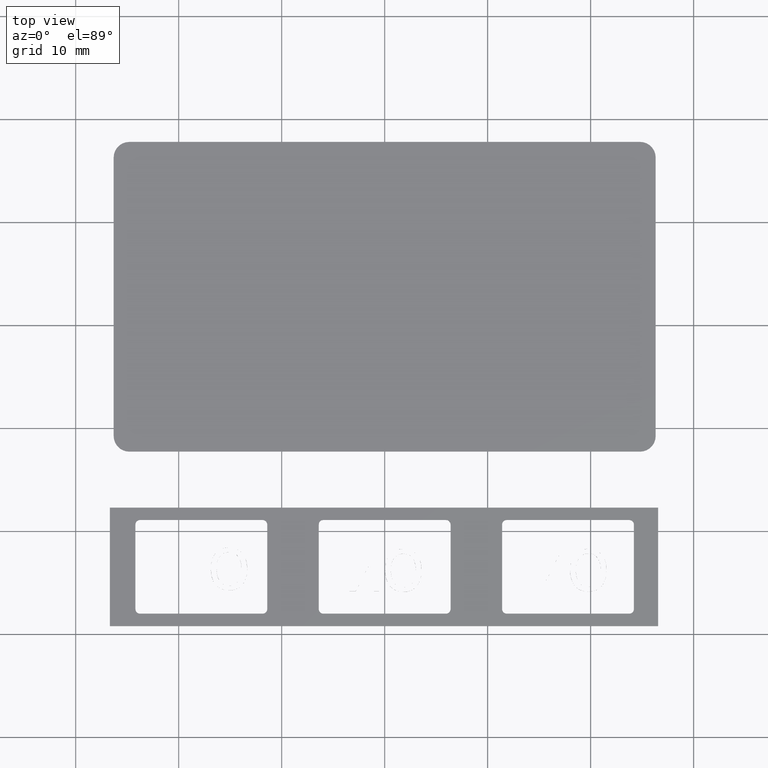
[diagram: clean part render]
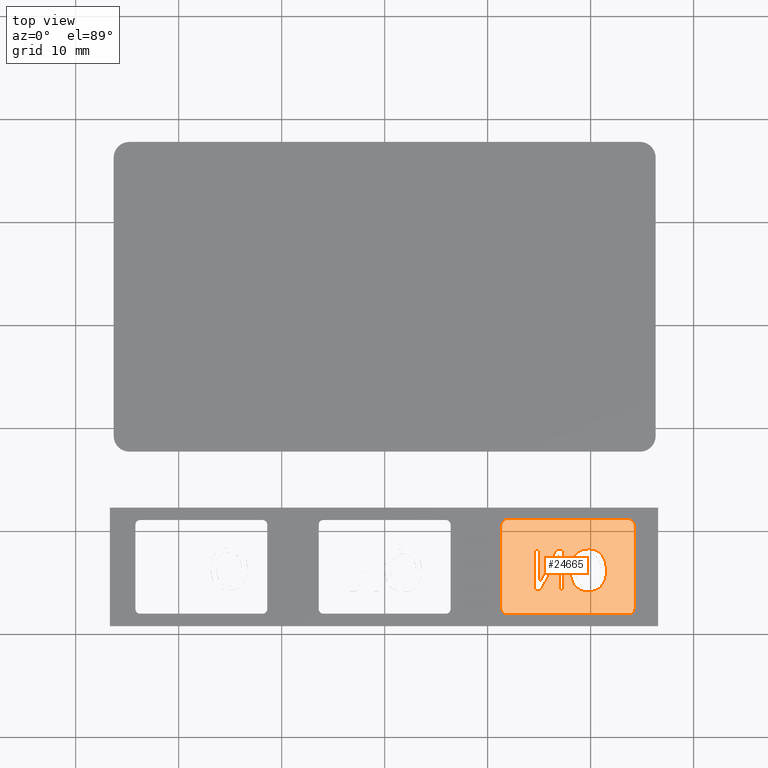
[diagram: same view with one face highlighted and labeled with its STEP entity id]
A machine part, top view. The second image highlights one B-rep face of the part: STEP entity #24665.
In plain terms, the highlighted planar face has unit normal (0, -0, 1).
Its self-contained STEP definition (entity closure, byte-faithful):
#77=FACE_BOUND('',#7277,.T.);
#78=FACE_BOUND('',#7278,.T.);
#341=PLANE('',#27609);
#566=B_SPLINE_CURVE_WITH_KNOTS('',2,(#44213,#44214,#44215,#44216),
 .UNSPECIFIED.,.F.,.F.,(3,1,3),(0.,1.,2.),.UNSPECIFIED.);
#567=B_SPLINE_CURVE_WITH_KNOTS('',2,(#44218,#44219,#44220,#44221),
 .UNSPECIFIED.,.F.,.F.,(3,1,3),(0.,1.,2.),.UNSPECIFIED.);
#568=B_SPLINE_CURVE_WITH_KNOTS('',2,(#44223,#44224,#44225,#44226),
 .UNSPECIFIED.,.F.,.F.,(3,1,3),(0.,1.,2.),.UNSPECIFIED.);
#569=B_SPLINE_CURVE_WITH_KNOTS('',2,(#44228,#44229,#44230,#44231),
 .UNSPECIFIED.,.F.,.F.,(3,1,3),(0.,1.,2.),.UNSPECIFIED.);
#570=B_SPLINE_CURVE_WITH_KNOTS('',2,(#44233,#44234,#44235,#44236),
 .UNSPECIFIED.,.F.,.F.,(3,1,3),(0.,1.,2.),.UNSPECIFIED.);
#571=B_SPLINE_CURVE_WITH_KNOTS('',2,(#44238,#44239,#44240,#44241),
 .UNSPECIFIED.,.F.,.F.,(3,1,3),(0.,1.,2.),.UNSPECIFIED.);
#572=B_SPLINE_CURVE_WITH_KNOTS('',2,(#44243,#44244,#44245,#44246),
 .UNSPECIFIED.,.F.,.F.,(3,1,3),(0.,1.,2.),.UNSPECIFIED.);
#573=B_SPLINE_CURVE_WITH_KNOTS('',2,(#44247,#44248,#44249,#44250),
 .UNSPECIFIED.,.F.,.F.,(3,1,3),(0.,1.,2.),.UNSPECIFIED.);
#1514=LINE('',#40736,#3161);
#1517=LINE('',#40744,#3164);
#1520=LINE('',#40752,#3167);
#1523=LINE('',#40759,#3170);
#2123=LINE('',#44253,#3770);
#2124=LINE('',#44255,#3771);
#2125=LINE('',#44257,#3772);
#2126=LINE('',#44259,#3773);
#2127=LINE('',#44261,#3774);
#2128=LINE('',#44263,#3775);
#2129=LINE('',#44265,#3776);
#2130=LINE('',#44267,#3777);
#2131=LINE('',#44269,#3778);
#2132=LINE('',#44270,#3779);
#3161=VECTOR('',#33555,11.9);
#3164=VECTOR('',#33564,8.2);
#3167=VECTOR('',#33573,11.9);
#3170=VECTOR('',#33582,8.2);
#3770=VECTOR('',#34854,3.87654693840727);
#3771=VECTOR('',#34855,3.44894656679039);
#3772=VECTOR('',#34856,0.495948143532834);
#3773=VECTOR('',#34857,4.00000005960464);
#3774=VECTOR('',#34858,0.755267434268951);
#3775=VECTOR('',#34859,3.55315041912797);
#3776=VECTOR('',#34860,3.16693683811486);
#3777=VECTOR('',#34861,0.495948143532825);
#3778=VECTOR('',#34862,4.00000005960464);
#3779=VECTOR('',#34863,0.596434368693073);
#5943=FACE_OUTER_BOUND('',#7276,.T.);
#7276=EDGE_LOOP('',(#21834,#21835,#21836,#21837,#21838,#21839,#21840,#21841));
#7277=EDGE_LOOP('',(#21842,#21843,#21844,#21845,#21846,#21847,#21848,#21849));
#7278=EDGE_LOOP('',(#21850,#21851,#21852,#21853,#21854,#21855,#21856,#21857,
#21858,#21859));
#9035=CIRCLE('',#27263,0.45);
#9036=CIRCLE('',#27266,0.45);
#9037=CIRCLE('',#27269,0.45);
#9038=CIRCLE('',#27272,0.45);
#10833=VERTEX_POINT('',#40729);
#10834=VERTEX_POINT('',#40730);
#10835=VERTEX_POINT('',#40735);
#10836=VERTEX_POINT('',#40739);
#10837=VERTEX_POINT('',#40743);
#10838=VERTEX_POINT('',#40747);
#10839=VERTEX_POINT('',#40751);
#10840=VERTEX_POINT('',#40755);
#11359=VERTEX_POINT('',#44211);
#11360=VERTEX_POINT('',#44212);
#11361=VERTEX_POINT('',#44217);
#11362=VERTEX_POINT('',#44222);
#11363=VERTEX_POINT('',#44227);
#11364=VERTEX_POINT('',#44232);
#11365=VERTEX_POINT('',#44237);
#11366=VERTEX_POINT('',#44242);
#11367=VERTEX_POINT('',#44251);
#11368=VERTEX_POINT('',#44252);
#11369=VERTEX_POINT('',#44254);
#11370=VERTEX_POINT('',#44256);
#11371=VERTEX_POINT('',#44258);
#11372=VERTEX_POINT('',#44260);
#11373=VERTEX_POINT('',#44262);
#11374=VERTEX_POINT('',#44264);
#11375=VERTEX_POINT('',#44266);
#11376=VERTEX_POINT('',#44268);
#14048=EDGE_CURVE('',#10833,#10834,#9035,.T.);
#14051=EDGE_CURVE('',#10835,#10833,#1514,.T.);
#14053=EDGE_CURVE('',#10836,#10835,#9036,.T.);
#14055=EDGE_CURVE('',#10837,#10836,#1517,.T.);
#14057=EDGE_CURVE('',#10838,#10837,#9037,.T.);
#14059=EDGE_CURVE('',#10839,#10838,#1520,.T.);
#14061=EDGE_CURVE('',#10840,#10839,#9038,.T.);
#14063=EDGE_CURVE('',#10834,#10840,#1523,.T.);
#14869=EDGE_CURVE('',#11359,#11360,#566,.T.);
#14870=EDGE_CURVE('',#11360,#11361,#567,.T.);
#14871=EDGE_CURVE('',#11361,#11362,#568,.T.);
#14872=EDGE_CURVE('',#11362,#11363,#569,.T.);
#14873=EDGE_CURVE('',#11363,#11364,#570,.T.);
#14874=EDGE_CURVE('',#11364,#11365,#571,.T.);
#14875=EDGE_CURVE('',#11365,#11366,#572,.T.);
#14876=EDGE_CURVE('',#11366,#11359,#573,.T.);
#14877=EDGE_CURVE('',#11367,#11368,#2123,.T.);
#14878=EDGE_CURVE('',#11368,#11369,#2124,.T.);
#14879=EDGE_CURVE('',#11369,#11370,#2125,.T.);
#14880=EDGE_CURVE('',#11370,#11371,#2126,.T.);
#14881=EDGE_CURVE('',#11371,#11372,#2127,.T.);
#14882=EDGE_CURVE('',#11372,#11373,#2128,.T.);
#14883=EDGE_CURVE('',#11373,#11374,#2129,.T.);
#14884=EDGE_CURVE('',#11374,#11375,#2130,.T.);
#14885=EDGE_CURVE('',#11375,#11376,#2131,.T.);
#14886=EDGE_CURVE('',#11376,#11367,#2132,.T.);
#21834=ORIENTED_EDGE('',*,*,#14063,.T.);
#21835=ORIENTED_EDGE('',*,*,#14061,.T.);
#21836=ORIENTED_EDGE('',*,*,#14059,.T.);
#21837=ORIENTED_EDGE('',*,*,#14057,.T.);
#21838=ORIENTED_EDGE('',*,*,#14055,.T.);
#21839=ORIENTED_EDGE('',*,*,#14053,.T.);
#21840=ORIENTED_EDGE('',*,*,#14051,.T.);
#21841=ORIENTED_EDGE('',*,*,#14048,.T.);
#21842=ORIENTED_EDGE('',*,*,#14869,.T.);
#21843=ORIENTED_EDGE('',*,*,#14870,.T.);
#21844=ORIENTED_EDGE('',*,*,#14871,.T.);
#21845=ORIENTED_EDGE('',*,*,#14872,.T.);
#21846=ORIENTED_EDGE('',*,*,#14873,.T.);
#21847=ORIENTED_EDGE('',*,*,#14874,.T.);
#21848=ORIENTED_EDGE('',*,*,#14875,.T.);
#21849=ORIENTED_EDGE('',*,*,#14876,.T.);
#21850=ORIENTED_EDGE('',*,*,#14877,.T.);
#21851=ORIENTED_EDGE('',*,*,#14878,.T.);
#21852=ORIENTED_EDGE('',*,*,#14879,.T.);
#21853=ORIENTED_EDGE('',*,*,#14880,.T.);
#21854=ORIENTED_EDGE('',*,*,#14881,.T.);
#21855=ORIENTED_EDGE('',*,*,#14882,.T.);
#21856=ORIENTED_EDGE('',*,*,#14883,.T.);
#21857=ORIENTED_EDGE('',*,*,#14884,.T.);
#21858=ORIENTED_EDGE('',*,*,#14885,.T.);
#21859=ORIENTED_EDGE('',*,*,#14886,.T.);
#24665=ADVANCED_FACE('',(#5943,#77,#78),#341,.F.);
#27263=AXIS2_PLACEMENT_3D('',#40731,#33549,#33550);
#27266=AXIS2_PLACEMENT_3D('',#40740,#33559,#33560);
#27269=AXIS2_PLACEMENT_3D('',#40748,#33568,#33569);
#27272=AXIS2_PLACEMENT_3D('',#40756,#33577,#33578);
#27609=AXIS2_PLACEMENT_3D('',#44210,#34852,#34853);
#33549=DIRECTION('center_axis',(-1.19117678683756E-15,1.03039885219751E-17,
-1.));
#33550=DIRECTION('ref_axis',(-2.75152572753243E-16,1.,-3.41278292167793E-17));
#33555=DIRECTION('',(1.,2.75152572753243E-16,-1.19117678683756E-15));
#33559=DIRECTION('center_axis',(-1.19117678683756E-15,1.03039885219751E-17,
-1.));
#33560=DIRECTION('ref_axis',(-1.,-2.75152572753243E-16,-3.5619655373375E-16));
#33564=DIRECTION('',(-2.75152572753243E-16,1.,1.03039885219755E-17));
#33568=DIRECTION('center_axis',(-1.19117678683756E-15,1.03039885219751E-17,
-1.));
#33569=DIRECTION('ref_axis',(2.75152572753243E-16,-1.,3.41278292167793E-17));
#33573=DIRECTION('',(-1.,-2.75152572753243E-16,1.19117678683756E-15));
#33577=DIRECTION('center_axis',(-1.19117678683756E-15,1.03039885219751E-17,
-1.));
#33578=DIRECTION('ref_axis',(1.,2.75152572753243E-16,3.5619655373375E-16));
#33582=DIRECTION('',(1.35829698702169E-15,-1.,-1.03039885219767E-17));
#34852=DIRECTION('center_axis',(1.19117678683756E-15,-1.03039885219751E-17,
1.));
#34853=DIRECTION('ref_axis',(-1.,-7.105427357601E-16,1.19348975147204E-15));
#34854=DIRECTION('',(0.456554296231785,0.889695551631174,-5.34669466850201E-16));
#34855=DIRECTION('',(7.24558038908854E-16,-1.,-1.0303988521976E-17));
#34856=DIRECTION('',(1.,7.24558038908854E-16,-1.19117678683756E-15));
#34857=DIRECTION('',(-7.24558038908854E-16,1.,1.0303988521976E-17));
#34858=DIRECTION('',(-1.,-7.24558038908854E-16,1.19117678683756E-15));
#34859=DIRECTION('',(-0.45340638691382,-0.891303903450308,5.30903177904889E-16));
#34860=DIRECTION('',(-7.24558038908854E-16,1.,1.0303988521976E-17));
#34861=DIRECTION('',(-1.,-7.24558038908854E-16,1.19117678683756E-15));
#34862=DIRECTION('',(7.24558038908854E-16,-1.,-1.0303988521976E-17));
#34863=DIRECTION('',(1.,7.24558038908854E-16,-1.19117678683756E-15));
#40729=CARTESIAN_POINT('',(23.7500000000005,-88.9000000000002,0.37499999999997));
#40730=CARTESIAN_POINT('',(24.2000000000005,-89.3500000000002,0.37499999999997));
#40731=CARTESIAN_POINT('Origin',(23.7500000000005,-89.3500000000002,0.375000000000014));
#40735=CARTESIAN_POINT('',(11.8500000000005,-88.9000000000002,0.374999999999988));
#40736=CARTESIAN_POINT('',(11.8750000000005,-88.9000000000002,0.374999999999996));
#40739=CARTESIAN_POINT('',(11.4000000000005,-89.3500000000002,0.374999999999996));
#40740=CARTESIAN_POINT('Origin',(11.8500000000005,-89.3500000000002,0.375000000000014));
#40743=CARTESIAN_POINT('',(11.4000000000005,-97.5500000000002,0.374999999999988));
#40744=CARTESIAN_POINT('',(11.4000000000005,-63.6750000000001,0.374999999999996));
#40747=CARTESIAN_POINT('',(11.8500000000005,-98.0000000000002,0.374999999999988));
#40748=CARTESIAN_POINT('Origin',(11.8500000000005,-97.5500000000002,0.375000000000014));
#40751=CARTESIAN_POINT('',(23.7500000000005,-98.0000000000002,0.37499999999997));
#40752=CARTESIAN_POINT('',(5.92500000000053,-98.0000000000002,0.374999999999996));
#40755=CARTESIAN_POINT('',(24.2000000000005,-97.5500000000002,0.37499999999997));
#40756=CARTESIAN_POINT('Origin',(23.7500000000005,-97.5500000000002,0.375000000000014));
#40759=CARTESIAN_POINT('',(24.2000000000005,-67.7750000000001,0.374999999999979));
#44210=CARTESIAN_POINT('Origin',(5.33151852812161E-13,-38.,0.375000000000005));
#44211=CARTESIAN_POINT('',(18.004873681427,-93.7818023852545,0.374999999999988));
#44212=CARTESIAN_POINT('',(18.4846143692888,-95.3215106740002,0.374999999999988));
#44213=CARTESIAN_POINT('Ctrl Pts',(18.004873681427,-93.7818023852545,0.374999999999988));
#44214=CARTESIAN_POINT('Ctrl Pts',(18.004873681427,-94.2680260553847,0.374999999999988));
#44215=CARTESIAN_POINT('Ctrl Pts',(18.2512270076263,-95.0557084009957,0.374999999999988));
#44216=CARTESIAN_POINT('Ctrl Pts',(18.4846143692888,-95.3215106740002,0.374999999999988));
#44217=CARTESIAN_POINT('',(19.774727840701,-95.866081184546,0.374999999999988));
#44218=CARTESIAN_POINT('Ctrl Pts',(18.4846143692888,-95.3215106740002,0.374999999999988));
#44219=CARTESIAN_POINT('Ctrl Pts',(18.7309676954881,-95.6002789115415,0.374999999999988));
#44220=CARTESIAN_POINT('Ctrl Pts',(19.3825074134626,-95.866081184546,0.374999999999988));
#44221=CARTESIAN_POINT('Ctrl Pts',(19.774727840701,-95.866081184546,0.374999999999988));
#44222=CARTESIAN_POINT('',(21.0648413121132,-95.3215106740002,0.374999999999988));
#44223=CARTESIAN_POINT('Ctrl Pts',(19.774727840701,-95.866081184546,0.374999999999988));
#44224=CARTESIAN_POINT('Ctrl Pts',(20.1799142324762,-95.866081184546,0.374999999999988));
#44225=CARTESIAN_POINT('Ctrl Pts',(20.8282124593165,-95.5905544381389,0.374999999999988));
#44226=CARTESIAN_POINT('Ctrl Pts',(21.0648413121132,-95.3215106740002,0.374999999999988));
#44227=CARTESIAN_POINT('',(21.5413405088408,-93.7818023852545,0.374999999999988));
#44228=CARTESIAN_POINT('Ctrl Pts',(21.0648413121132,-95.3215106740002,0.374999999999988));
#44229=CARTESIAN_POINT('Ctrl Pts',(21.2949871826415,-95.0557084009957,0.374999999999988));
#44230=CARTESIAN_POINT('Ctrl Pts',(21.5413405088408,-94.2745090376531,0.374999999999988));
#44231=CARTESIAN_POINT('Ctrl Pts',(21.5413405088408,-93.7818023852545,0.374999999999988));
#44232=CARTESIAN_POINT('',(21.061599820979,-92.2388526053746,0.374999999999988));
#44233=CARTESIAN_POINT('Ctrl Pts',(21.5413405088408,-93.7818023852545,0.374999999999988));
#44234=CARTESIAN_POINT('Ctrl Pts',(21.5413405088408,-93.2793712594533,0.374999999999988));
#44235=CARTESIAN_POINT('Ctrl Pts',(21.2917456915073,-92.5143793517817,0.374999999999988));
#44236=CARTESIAN_POINT('Ctrl Pts',(21.061599820979,-92.2388526053746,0.374999999999988));
#44237=CARTESIAN_POINT('',(19.774727840701,-91.6975235859629,0.374999999999988));
#44238=CARTESIAN_POINT('Ctrl Pts',(21.061599820979,-92.2388526053746,0.374999999999988));
#44239=CARTESIAN_POINT('Ctrl Pts',(20.8282124593165,-91.97305033237,0.374999999999988));
#44240=CARTESIAN_POINT('Ctrl Pts',(20.176672741342,-91.6975235859629,0.374999999999988));
#44241=CARTESIAN_POINT('Ctrl Pts',(19.774727840701,-91.6975235859629,0.374999999999988));
#44242=CARTESIAN_POINT('',(18.4846143692888,-92.2388526053746,0.374999999999988));
#44243=CARTESIAN_POINT('Ctrl Pts',(19.774727840701,-91.6975235859629,0.374999999999988));
#44244=CARTESIAN_POINT('Ctrl Pts',(19.3662999577916,-91.6975235859629,0.374999999999988));
#44245=CARTESIAN_POINT('Ctrl Pts',(18.7115187486829,-91.9827748057726,0.374999999999988));
#44246=CARTESIAN_POINT('Ctrl Pts',(18.4846143692888,-92.2388526053746,0.374999999999988));
#44247=CARTESIAN_POINT('Ctrl Pts',(18.4846143692888,-92.2388526053746,0.374999999999988));
#44248=CARTESIAN_POINT('Ctrl Pts',(18.2577099898947,-92.5046548783791,0.374999999999988));
#44249=CARTESIAN_POINT('Ctrl Pts',(18.004873681427,-93.2826127505875,0.374999999999988));
#44250=CARTESIAN_POINT('Ctrl Pts',(18.004873681427,-93.7818023852545,0.374999999999988));
#44251=CARTESIAN_POINT('',(15.1556029744639,-95.7818024150568,0.374999999999996));
#44252=CARTESIAN_POINT('',(16.9254571337379,-92.3328558482664,0.374999999999988));
#44253=CARTESIAN_POINT('',(26.1963194356323,-74.2665600804721,0.37499999999997));
#44254=CARTESIAN_POINT('',(16.9254571337379,-95.7818024150568,0.374999999999988));
#44255=CARTESIAN_POINT('',(16.9254571337379,-66.8909012075284,0.374999999999988));
#44256=CARTESIAN_POINT('',(17.4214052772708,-95.7818024150568,0.374999999999988));
#44257=CARTESIAN_POINT('',(8.71070263863566,-95.7818024150568,0.374999999999996));
#44258=CARTESIAN_POINT('',(17.4214052772707,-91.7818023554522,0.374999999999988));
#44259=CARTESIAN_POINT('',(17.4214052772707,-64.8909011777261,0.374999999999988));
#44260=CARTESIAN_POINT('',(16.6661378430018,-91.7818023554522,0.374999999999996));
#44261=CARTESIAN_POINT('',(8.33306892150118,-91.7818023554522,0.374999999999996));
#44262=CARTESIAN_POINT('',(15.0551167493037,-94.948739193567,0.374999999999996));
#44263=CARTESIAN_POINT('',(25.0147655529006,-75.3701136782467,0.37499999999997));
#44264=CARTESIAN_POINT('',(15.0551167493037,-91.7818023554522,0.374999999999996));
#44265=CARTESIAN_POINT('',(15.0551167493036,-64.8909011777261,0.374999999999988));
#44266=CARTESIAN_POINT('',(14.5591686057708,-91.7818023554522,0.374999999999996));
#44267=CARTESIAN_POINT('',(7.2795843028857,-91.7818023554522,0.374999999999988));
#44268=CARTESIAN_POINT('',(14.5591686057708,-95.7818024150568,0.374999999999996));
#44269=CARTESIAN_POINT('',(14.5591686057708,-66.8909012075284,0.374999999999988));
#44270=CARTESIAN_POINT('',(7.57780148723224,-95.7818024150568,0.374999999999996));